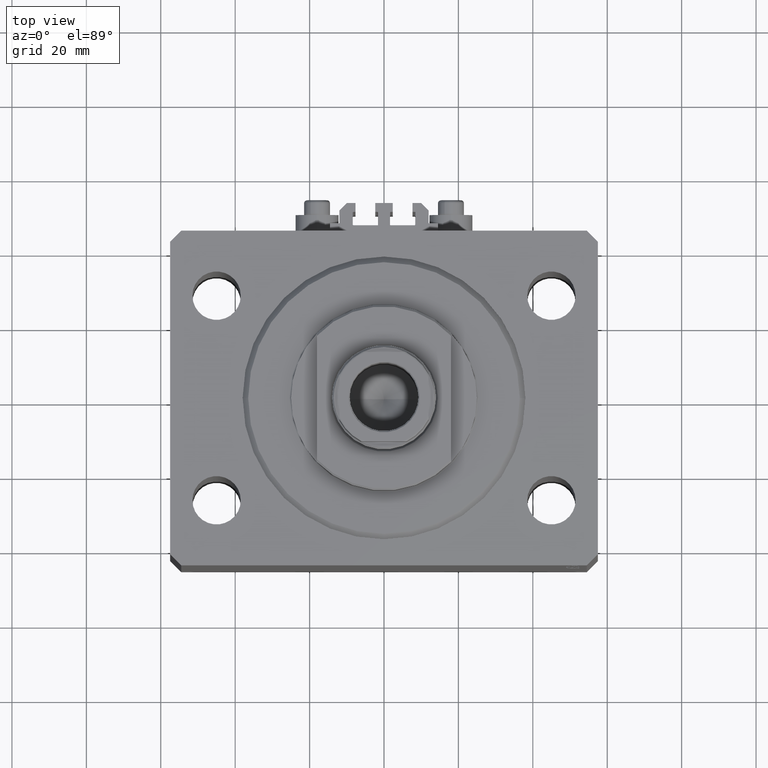
[diagram: clean part render]
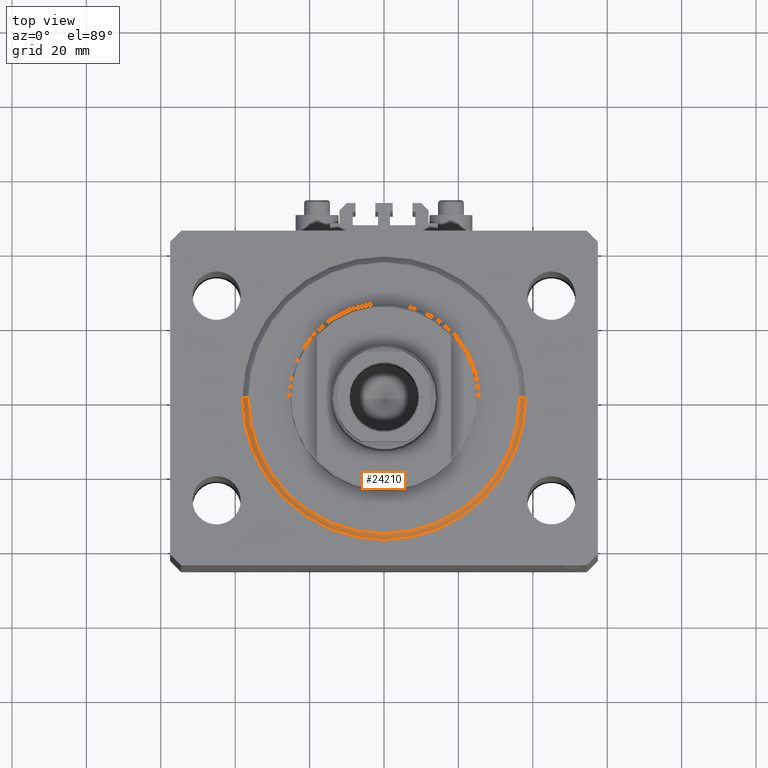
[diagram: same view with one face highlighted and labeled with its STEP entity id]
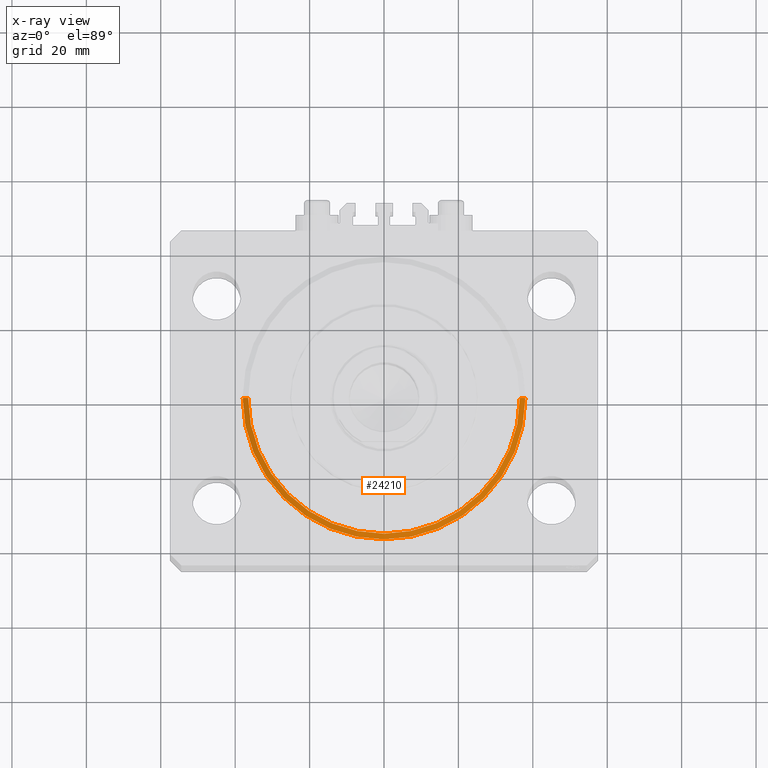
[diagram: x-ray of the same camera — body ghosted, the highlighted face saturated]
A machine part, top view. The second image highlights one B-rep face of the part: STEP entity #24210.
The next image is the same camera in x-ray: the body ghosted, the highlighted face saturated — about 0% of this face is hidden behind the body in this view.
In plain terms, the highlighted conical surface has half-angle 45 deg.
Its self-contained STEP definition (entity closure, byte-faithful):
#838 = DIRECTION ( 'NONE',  ( -0.000000000000000000, -0.000000000000000000, -1.000000000000000000 ) ) ;
#2610 = AXIS2_PLACEMENT_3D ( 'NONE', #19921, #34520, #30943 ) ;
#5568 = EDGE_CURVE ( 'NONE', #38630, #36216, #20281, .T. ) ;
#7823 = EDGE_CURVE ( 'NONE', #41212, #26278, #17795, .T. ) ;
#8259 = CARTESIAN_POINT ( 'NONE',  ( 0.000000000000000000, 0.000000000000000000, 0.000000000000000000 ) ) ;
#11916 = CARTESIAN_POINT ( 'NONE',  ( -38.00000000000000000, 0.000000000000000000, 1.499999999999994449 ) ) ;
#12282 = CARTESIAN_POINT ( 'NONE',  ( 36.50000000000000000, 0.000000000000000000, 0.000000000000000000 ) ) ;
#12886 = VECTOR ( 'NONE', #13331, 1000.000000000000114 ) ;
#13133 = CARTESIAN_POINT ( 'NONE',  ( 0.000000000000000000, 0.000000000000000000, 1.499999999999994449 ) ) ;
#13331 = DIRECTION ( 'NONE',  ( -0.7071067811865491270, 8.659560562354953812E-17, 0.7071067811865459074 ) ) ;
#14947 = CIRCLE ( 'NONE', #22594, 36.50000000000000000 ) ;
#15239 = EDGE_LOOP ( 'NONE', ( #18075, #27230, #17715, #43277 ) ) ;
#15471 = CARTESIAN_POINT ( 'NONE',  ( 38.00000000000000000, 4.653657836759941941E-15, 1.499999999999994449 ) ) ;
#16096 = FACE_OUTER_BOUND ( 'NONE', #15239, .T. ) ;
#17715 = ORIENTED_EDGE ( 'NONE', *, *, #7823, .T. ) ;
#17795 = LINE ( 'NONE', #35972, #21366 ) ;
#18075 = ORIENTED_EDGE ( 'NONE', *, *, #5568, .F. ) ;
#18459 = CARTESIAN_POINT ( 'NONE',  ( -36.50000000000000000, 4.561809326823889791E-15, 0.000000000000000000 ) ) ;
#19921 = CARTESIAN_POINT ( 'NONE',  ( 0.000000000000000000, 0.000000000000000000, 1.499999999999994449 ) ) ;
#20281 = LINE ( 'NONE', #31515, #12886 ) ;
#20544 = DIRECTION ( 'NONE',  ( 1.000000000000000000, 0.000000000000000000, 0.000000000000000000 ) ) ;
#21366 = VECTOR ( 'NONE', #21612, 1000.000000000000114 ) ;
#21612 = DIRECTION ( 'NONE',  ( 0.7071067811865491270, 0.000000000000000000, 0.7071067811865459074 ) ) ;
#22594 = AXIS2_PLACEMENT_3D ( 'NONE', #8259, #838, #32923 ) ;
#24210 = ADVANCED_FACE ( 'NONE', ( #16096 ), #36259, .T. ) ;
#26278 = VERTEX_POINT ( 'NONE', #15471 ) ;
#27144 = CIRCLE ( 'NONE', #46259, 38.00000000000000000 ) ;
#27230 = ORIENTED_EDGE ( 'NONE', *, *, #27457, .F. ) ;
#27457 = EDGE_CURVE ( 'NONE', #41212, #38630, #14947, .T. ) ;
#30943 = DIRECTION ( 'NONE',  ( 1.000000000000000000, 0.000000000000000000, 0.000000000000000000 ) ) ;
#31515 = CARTESIAN_POINT ( 'NONE',  ( -38.00000000000000000, 4.653657836759941941E-15, 1.499999999999994449 ) ) ;
#32923 = DIRECTION ( 'NONE',  ( 1.000000000000000000, 0.000000000000000000, 0.000000000000000000 ) ) ;
#34520 = DIRECTION ( 'NONE',  ( -0.000000000000000000, -0.000000000000000000, 1.000000000000000000 ) ) ;
#35972 = CARTESIAN_POINT ( 'NONE',  ( 38.00000000000000000, 0.000000000000000000, 1.499999999999994449 ) ) ;
#36216 = VERTEX_POINT ( 'NONE', #11916 ) ;
#36259 = CONICAL_SURFACE ( 'NONE', #2610, 38.00000000000000000, 0.7853981633974506105 ) ;
#38630 = VERTEX_POINT ( 'NONE', #18459 ) ;
#39200 = DIRECTION ( 'NONE',  ( -0.000000000000000000, -0.000000000000000000, 1.000000000000000000 ) ) ;
#41212 = VERTEX_POINT ( 'NONE', #12282 ) ;
#43277 = ORIENTED_EDGE ( 'NONE', *, *, #47215, .F. ) ;
#46259 = AXIS2_PLACEMENT_3D ( 'NONE', #13133, #39200, #20544 ) ;
#47215 = EDGE_CURVE ( 'NONE', #36216, #26278, #27144, .T. ) ;